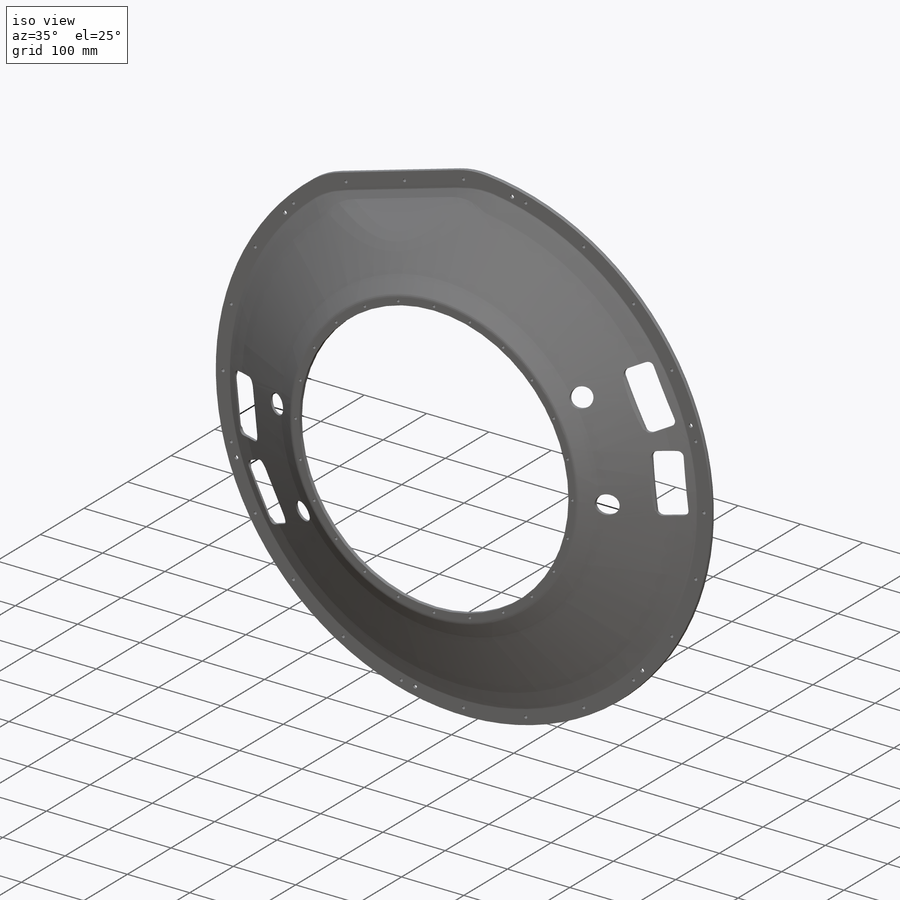
[diagram: iso view]
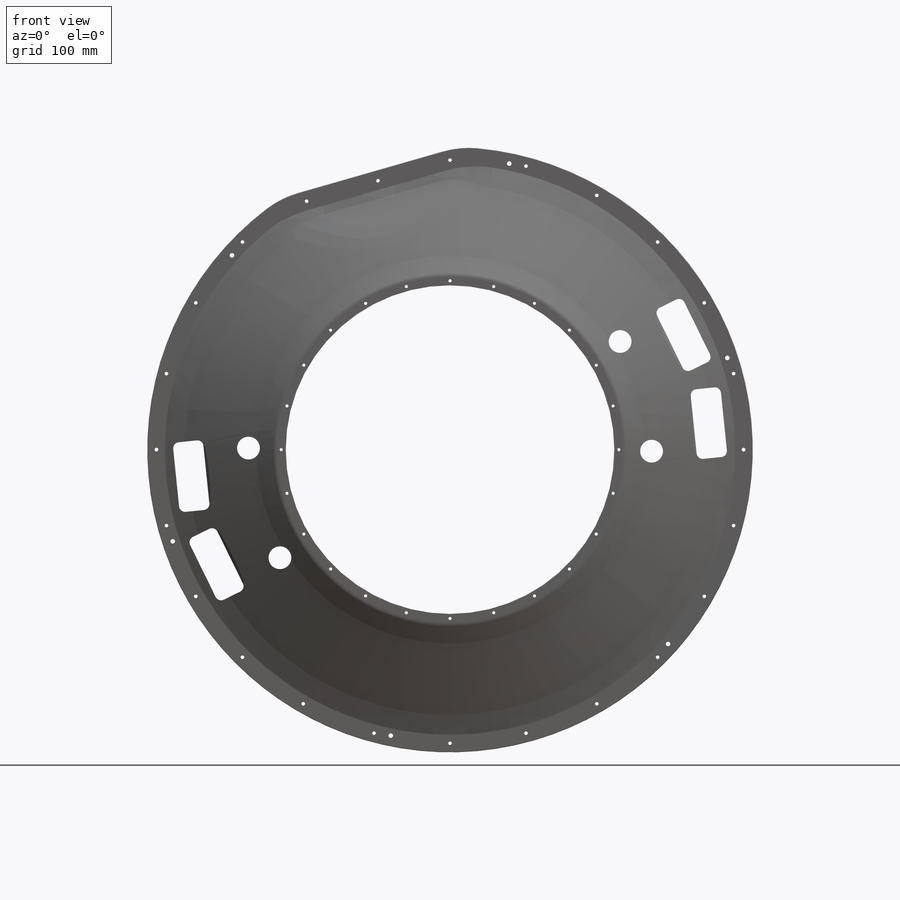
[diagram: front view]
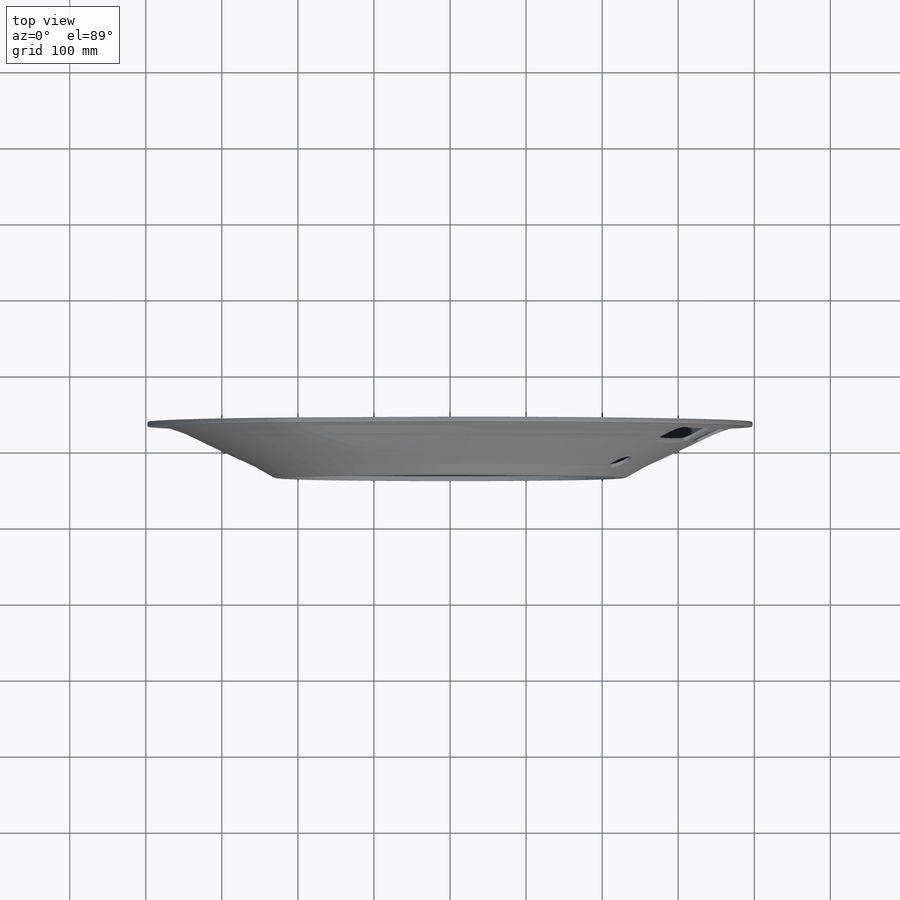
[diagram: top view]
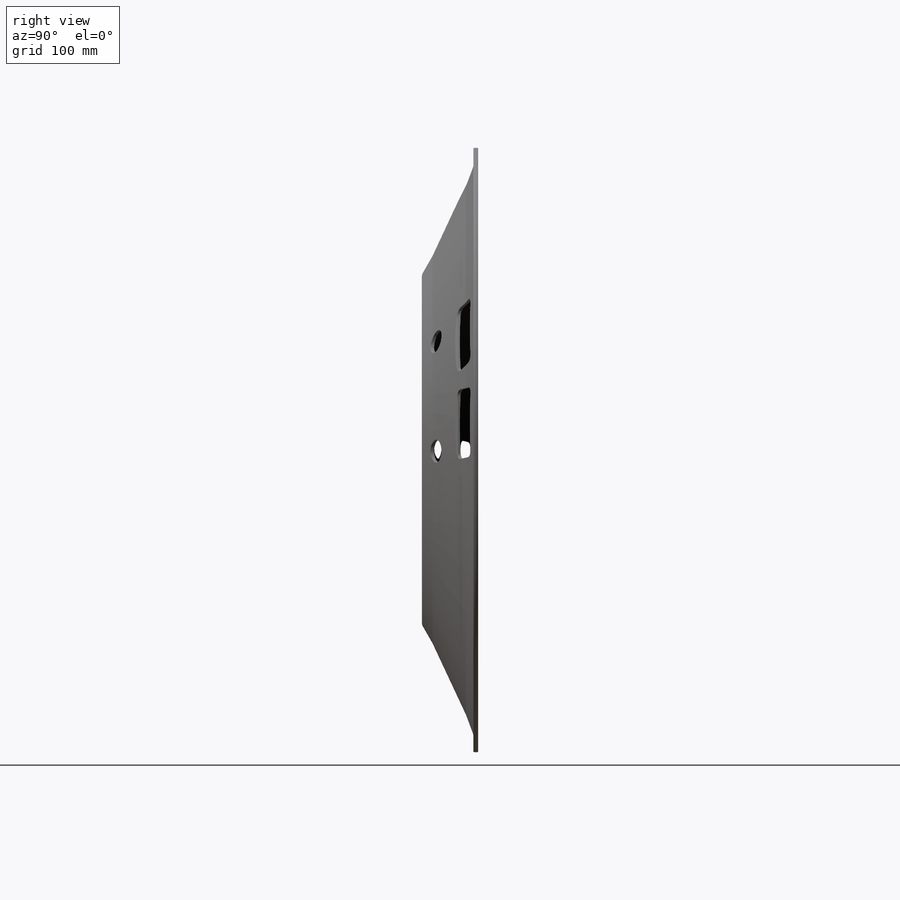
[diagram: right view]
SOLIDWORKS PART (.sldprt)
format: sldprt  version: not decoded by parser v0  size: 8,174,592 bytes
history: native  units: mm
features: sketch x38, cut_extrude x12, extrude x10, fillet x8, plane x7, pattern_circular x5, hole x4, revolve x2, thread x2, move_body x2, sweep x2, material x1, cut_revolve x1, boolean_combine x1, delete_body x1, mirror x1 + 2 further entries (+11 scaffold rows collapsed; 1 parser-record rows omitted)
feature tree (111):
  scaffold x11  (default folders/planes/origin — collapsed)
  material  "Isotropic CFRP"
  plane  "Plane touching OSC flange"  Offset=559.8mm
  plane  "Plane touching WSC flange"  Offset=633.8mm
  "Central Axis_IDS Cone Shell Mold"
  plane  "16 deg"
  sketch  "Approx Shell Dimensions"  dims[c1.D5=8.0mm c1.D7=~43.728091mm c1.D6=~22.788692mm c1.D11=2.0mm c1.D12=4.0mm c1.D1=4.0mm c1.D2=6.0mm c1.D3=6.0mm c1.D4=800.0mm c2.D6=41.0mm c2.D8=432.0mm c2.D9=23.0mm c2.D10=64.0mm c3.D10=~33.150858deg c3.D5=~117.03492mm c4.D5=25.0deg c4.D6=45.0mm c5.D5=25.0mm c5.D7=64.0mm c6.D7=~29.837943deg c6.D5=482.0mm c6.D6=710.0mm c6.D8=432.0mm c7.D5=15.0mm c7.D6=~128.630673mm c8.D6=23.5deg c8.D7=~18.042393mm c9.D6=30.0mm c9.D5=4.0mm c9.D7=4.0mm c9.D9=454.0mm c10.D5=~146.554623mm c11.D5=30.0deg c12.D5=752.0mm c12.D10=45.0mm c13.D10=~25.035281deg c14.D10=~148.573005mm c15.D10=25.31deg c15.D11=58.0mm c16.D10=~143.409016mm c17.D10=~27.683654deg c18.D10=74.0mm c18.D11=~153.325515mm c19.D11=~25.828715deg c19.D12=~51.369226mm c20.D12=8.0deg c20.D13=~36.094021mm c21.D13=8.0deg c21.D14=~1.902681mm c22.D13=~15.06337mm c23.D13=8.0deg c24.D13=~12.037223mm c25.D13=8.0deg c25.D11=~14.370593mm c25.ply_buildup_angle=~4.289153deg c26.D11=~14.370593mm c27.D11=8.0deg c28.D11=24.5mm c29.D11=~25.143522deg c29.D13=4.0mm c29.D14=~26.666667mm c29.D15=~26.666667mm c29.D6=0.5mm c29.D7=454.0mm c29.D5=0.5mm c29.D9=752.0mm]
  sketch  "Sketch2"  dims[D1=100.0mm D2=15.0mm]
  revolve  "Revolve2"  Angle=360deg
  sketch  "Sketch3_IDS Cone Shell Mold"  dims[D1=90.0mm D2=352.0mm D3=~15.51991mm]
  cut_extrude  "flat cut-off"  Depth=1000mm
  sketch  "Sketch7"  dims[c1.D1=~105.108164mm c2.D1=~0.626563deg c3.D1=15.0mm c3.D2=8.0mm c3.D3=20.0mm c3.D4=4.0mm c3.D5=12.0mm c4.D4=10.0mm c4.D5=10.0mm c4.D6=~11.174965mm c4.D7=112.0mm c5.D5=8.0mm c5.D1=8.0mm c5.D2=20.0mm c5.D3=15.0mm c5.D6=12.0mm c5.D4=6.0mm c5.D7=~14.988947mm c6.D5=8.0mm c6.D1=25.0mm c6.D2=6.0mm c6.D3=25.0mm c6.D6=25.0mm]
  cut_revolve  "backside revolved cut"  Angle=360deg
  fillet  "backside fillets"  Radius=10mm
  sketch  "Sketch14_IDS Cone Shell Mold"  dims[D1=5.0mm]
  extrude  "rib"  [1 undecoded]
  fillet  "rib fillets"  Radius=10mm
  pattern_circular  "CirPattern - ribs"  Count=8 Angle=45deg
  hole  "Ø3.0 (3) Diameter Hole1"  Diameter=3mm Depth=6mm
  sketch  "Sketch162"  dims[D1=3.0mm D2=100.0mm]
  sketch  "Sketch152"  dims[hole-wizard template sketch: 49 standard entries collapsed; hole parameters kept: c15.Drill Angle=118.0deg]
  fillet  "flat cut-off's fillet"  Radius=200mm
  fillet  "inner flange fillet"  [1 undecoded]
  fillet  "outer flange fillet"  [1 undecoded]
  sketch  "Sketch20"
  extrude  "pocket refill"  [1 undecoded]
  hole  "1/4-20 Tapped Hole1"  Diameter=5.1054mm Depth=9mm
  sketch  "Sketch164"  dims[D1=365.0mm D2=95.0mm]
  sketch  "Sketch163"  dims[hole-wizard template sketch: 47 standard entries collapsed; hole parameters kept: c15.Tap Drill Depth=9.0mm c15.D3=~14.816244mm c15.Drill Angle=118.0deg]
  thread  "Hole Thread3"  Diameter=6.5mm  [1 undecoded]
  thread  "Hole Thread2"  Diameter=6.5mm  [1 undecoded]
  pattern_circular  "CirPattern1"  Count=4 Angle=90deg
  move_body  "Body-Move/Copy3"
  move_body  "Body-Move/Copy2"
  parser-record x1  (decoder bookkeeping rows leaked as tree rows — omitted from the tree; the rows remain in map.json)
  sketch  "Sketch1"
  revolve  "Revolve1"  Angle=360deg
  sketch  "Sketch3"
  sketch  "Sketch4"  dims[c1.D1=6.3mm c1.D2=26.7mm c2.D1=6.3mm]
  sweep  "Sweep1"
  boolean_combine  "Combine1"
  delete_body  "Body-Delete1"
  sketch  "Sketch5"  dims[D1=1000.0mm]
  cut_extrude  "Cut-Extrude1"  [1 undecoded]
  hole  "M4 Clearance Hole1"  Diameter=4.1mm Depth=95.742859mm
  sketch  "Sketch7"  dims[c1.D1=222.0mm c1.D2=~384.939374mm c2.D2=16.0deg c2.D4=366.0mm c2.D5=386.0mm c2.D7=15.0deg c2.D8=386.0mm c3.D5=386.0mm c3.D7=~158.411836mm c4.D7=15.0deg c4.D3=24.0 c4.D6=21.0]
  sketch  "Sketch6"  dims[hole-wizard template sketch: 60 standard entries collapsed; hole parameters kept: c18.Thru Hole Depth=~95.742859mm]
  sketch  "Sketch14"  dims[c1.D3=45.0mm c1.D5=308.0mm c1.D1=85.0mm c1.D2=~307.221804mm c2.D2=90.0deg c2.D4=85.0mm c3.D4=90.0deg c3.D5=295.0mm]
  cut_extrude  "Cut-Extrude2"  [1 undecoded]
  pattern_circular  "CirPattern3"  Count=2 Angle=180deg
  sketch  "Sketch15"  dims[D1=10.0mm]
  extrude  "extra to trim 1"  [1 undecoded]
  sketch  "Sketch16"  dims[D1=16.0mm]
  extrude  "extra to trim 2"  [1 undecoded]
  sketch  "Sketch22"  dims[D1=10.0mm]
  extrude  "Boss-Extrude1"  [1 undecoded]
  sketch  "Sketch21"  dims[D1=125.0mm D3=398.9795mm D4=1000.0mm D2=380.465mm]
  cut_extrude  "Cut-Extrude3 - TRIM OUTER EDGE"  [1 undecoded]
  sketch  "Sketch24"  dims[c1.D1=6.35mm c1.D2=1.0mm c1.D3=1.0mm c2.D2=0.5mm c2.D4=~1.360364mm]
  sweep  "Cut-Sweep1 - RADIUS AND RECESS OUTER EDGE"
  sketch  "Sketch21<2>"
  sketch  "Sketch28"  dims[D1=4.0mm]
  extrude  "Boss-Extrude3 - TIGHTEN OUTER PIN HOLE CLEARANCES (EAST)"  [1 undecoded]
  sketch  "Sketch31"  dims[D1=4.0mm]
  extrude  "Boss-Extrude3 - TIGHTEN INNER PIN HOLE CLEARANCES (EAST)"  [1 undecoded]
  sketch  "Sketch29"  dims[D1=4.0mm]
  extrude  "Boss-Extrude4 - TIGHTEN OUTER PIN HOLE CLEARANCES (WEST)"  [1 undecoded]
  sketch  "Sketch30"  dims[D1=4.0mm]
  extrude  "Boss-Extrude5 - TIGHTEN INNER PIN HOLE CLEARANCES (WEST)"  [1 undecoded]
  sketch  "Sketch25"  dims[D1=8.0mm]
  extrude  "Boss-Extrude2"  [1 undecoded]
  hole  "M4 Clearance Hole2"  Diameter=4.3mm Depth=5mm
  sketch  "Sketch27"  dims[D1=370.807mm D2=106.327mm]
  sketch  "Sketch26"  dims[hole-wizard template sketch: 60 standard entries collapsed; hole parameters kept: c18.Thru Hole Depth=5.0mm]
  sketch  "Sketch32"  dims[c1.D1=100.0mm c1.D2=300.0mm c1.D3=300.0mm c2.D3=0.0deg]
  cut_extrude  "Cut-Extrude3 - LARGE HAND HOLES"  [1 undecoded]
  sketch  "Sketch33"  dims[c1.D1=4.7mm c1.D2=5.0mm c1.D3=5.0mm c2.D2=5.0mm c2.D3=5.0mm]
  cut_extrude  "Cut-Extrude3 - LOOSEN OUTER BOLT HOLE CLEARANCES (EAST)"  [1 undecoded]
  sketch  "Sketch34"  dims[D1=4.8mm D2=5.0mm D3=5.0mm]
  cut_extrude  "Cut-Extrude3 - LOOSEN OUTER BOLT HOLE CLEARANCES (WEST)"  [1 undecoded]
  "Axis1"
  plane  "Plane1"
  plane  "Plane2"  Offset=1mm
  sketch  "Sketch35"  dims[c1.D1=~332.056125mm c1.D3=360.0mm c1.D5=25.0mm c2.D1=50.0mm c2.D2=~252.558192mm c3.D2=45.0deg c4.D2=200.0mm c4.D4=90.0deg c4.D1=70.0mm c5.D2=75.0mm c5.D3=340.0mm c5.D1=40.0mm c6.D2=92.0mm c6.D5=30.0mm c6.D3=362.0mm]
  cut_extrude  "SSD Cable Pass-thru"  [1 undecoded]
  fillet  "Fillet1"  Radius=8mm
  plane  "Plane3"
  sketch  "Sketch169"  dims[c1.D1=2.0mm c1.D2=10.0mm c1.D3=~4.940353mm c2.D3=45.0deg c2.D4=~3.617554mm c3.D4=45.0deg c3.D5=2.0mm]
  cut_extrude  "Cable pass chamfer cut"  [1 undecoded]
  fillet  "Fillet5"  Radius=1.5mm
  fillet  "Fillet6"  Radius=8mm
  plane  "Plane4"
  mirror  "Mirror3"
  pattern_circular  "CirPattern4"  Count=2 Angle=180deg
  sketch  "Sketch165"  dims[c1.D1=~61.684603mm c1.D2=30.0mm c2.D1=265.0mm c2.D3=~345.919096mm c3.D3=16.0deg c3.D4=150.0mm]
  cut_extrude  "SSD Air Pass-thru"  [1 undecoded]
  sketch  "Sketch166"  dims[c1.D4=6.0mm c1.D1=~481.195698mm c2.D1=106.0deg c2.D2=~332.752235mm c3.D2=30.0deg c3.D3=384.0mm c3.D5=4.0mm]
  cut_extrude  "EFS Attach Hole"  [1 undecoded]
  sketch  "Sketch167"  dims[D1=10.0mm]
  cut_extrude  "EFS Attach CBORE"  Depth=2.5mm
  pattern_circular  "CirPattern5"  Count=6 Angle=60deg
decode coverage: 56 of 89 modeling features carry decoded parameters; 2 rows unclassified (native names shown)
note: ~ marks probable driven/reference dimensions
note: 24 parameter values undecoded
summary: no parameter record found for 22 features; Diameter pulled from absorbed wizard sketch
note: suppression state not decoded; provenance and decode notes live in map.json
